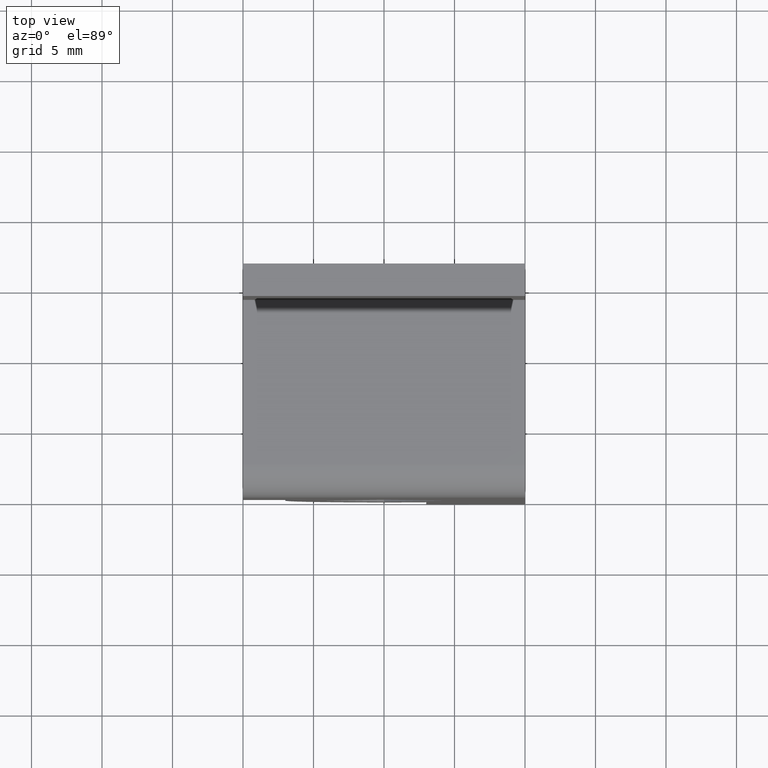
[diagram: clean part render]
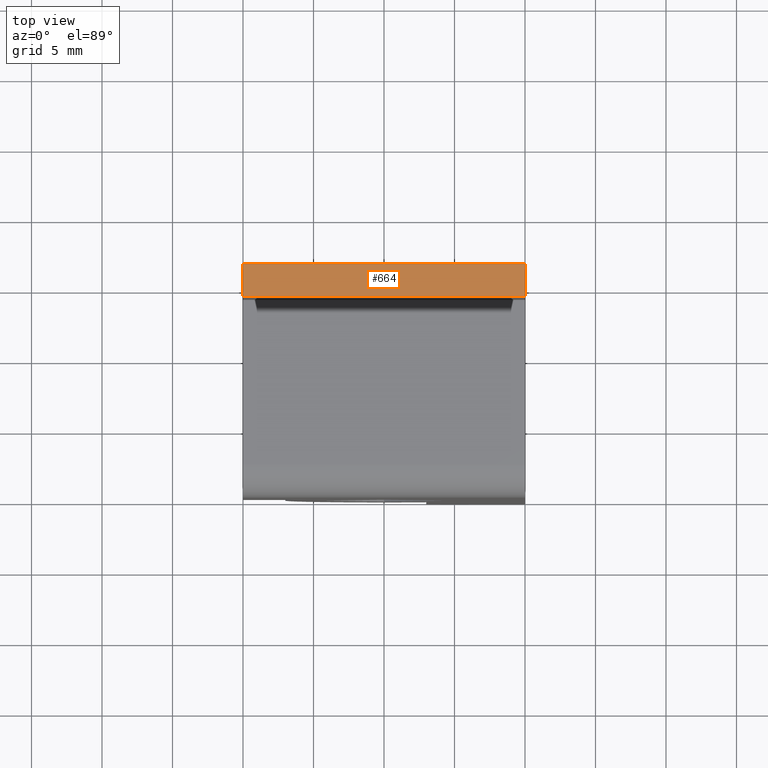
[diagram: same view with one face highlighted and labeled with its STEP entity id]
A machine part, top view. The second image highlights one B-rep face of the part: STEP entity #664.
In plain terms, the highlighted face is a freeform B-spline surface patch.
Its self-contained STEP definition (entity closure, byte-faithful):
#325=CARTESIAN_POINT('',(-10.000000000000121,14.0,30.0));
#326=VERTEX_POINT('',#325);
#332=CARTESIAN_POINT('',(-10.000000000000121,16.300003000000000,30.0));
#333=VERTEX_POINT('',#332);
#334=CARTESIAN_POINT('',(-10.000000000000121,16.300003000000000,30.0));
#335=CARTESIAN_POINT('',(-10.000000000000121,14.0,30.0));
#336=QUASI_UNIFORM_CURVE('',1,(#334,#335),.UNSPECIFIED.,.F.,.U.);
#337=EDGE_CURVE('',#333,#326,#336,.T.);
#376=CARTESIAN_POINT('',(10.0,16.300003000000000,30.0));
#377=VERTEX_POINT('',#376);
#378=CARTESIAN_POINT('',(10.0,14.0,30.0));
#379=VERTEX_POINT('',#378);
#380=CARTESIAN_POINT('',(10.0,16.300003000000000,30.0));
#381=CARTESIAN_POINT('',(10.0,14.0,30.0));
#382=QUASI_UNIFORM_CURVE('',1,(#380,#381),.UNSPECIFIED.,.F.,.U.);
#383=EDGE_CURVE('',#377,#379,#382,.T.);
#475=CARTESIAN_POINT('',(10.0,16.300003000000000,30.0));
#476=CARTESIAN_POINT('',(-10.000000000000121,16.300003000000000,30.0));
#477=QUASI_UNIFORM_CURVE('',1,(#475,#476),.UNSPECIFIED.,.F.,.U.);
#478=EDGE_CURVE('',#377,#333,#477,.T.);
#645=CARTESIAN_POINT('',(10.0,14.0,30.0));
#646=CARTESIAN_POINT('',(-10.000000000000121,14.0,30.0));
#647=QUASI_UNIFORM_CURVE('',1,(#645,#646),.UNSPECIFIED.,.F.,.U.);
#648=EDGE_CURVE('',#379,#326,#647,.T.);
#653=CARTESIAN_POINT('',(10.998999961236130,13.885114854607851,30.0));
#654=CARTESIAN_POINT('',(-10.999000497678050,13.885114854607851,30.0));
#655=CARTESIAN_POINT('',(10.998999961236130,16.414888207083042,30.0));
#656=CARTESIAN_POINT('',(-10.999000497678050,16.414888207083042,30.0));
#657=B_SPLINE_SURFACE_WITH_KNOTS('',1,1,((#653,#655),(#654,#656)),.UNSPECIFIED.,.F.,.F.,.U.,(2,2),(2,2),(0.0,21.998000458914181),(0.0,2.529773352475189),.UNSPECIFIED.);
#658=ORIENTED_EDGE('',*,*,#337,.T.);
#659=ORIENTED_EDGE('',*,*,#648,.F.);
#660=ORIENTED_EDGE('',*,*,#383,.F.);
#661=ORIENTED_EDGE('',*,*,#478,.T.);
#662=EDGE_LOOP('',(#658,#659,#660,#661));
#663=FACE_OUTER_BOUND('',#662,.T.);
#664=ADVANCED_FACE('',(#663),#657,.F.);